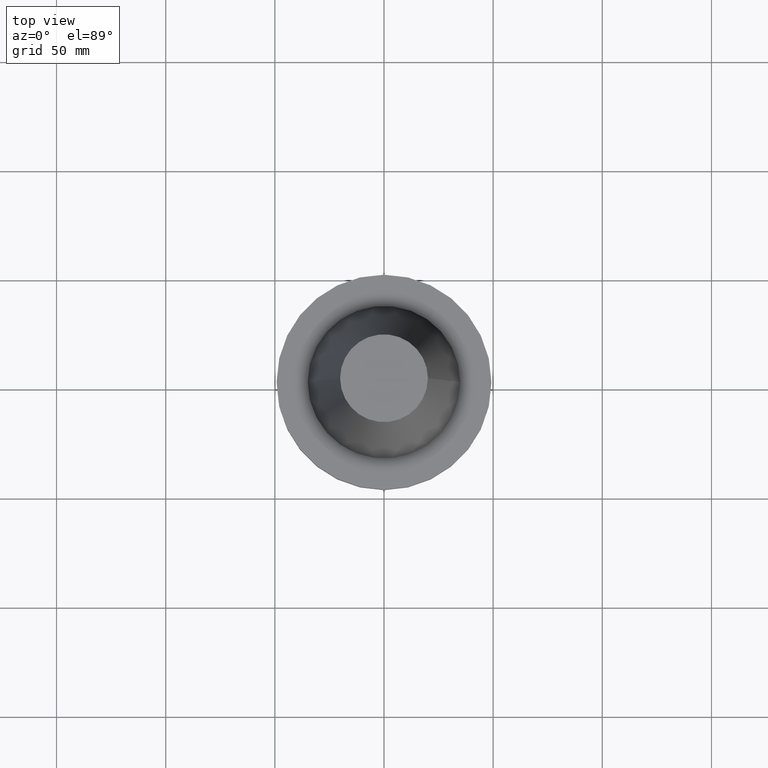
[diagram: clean part render]
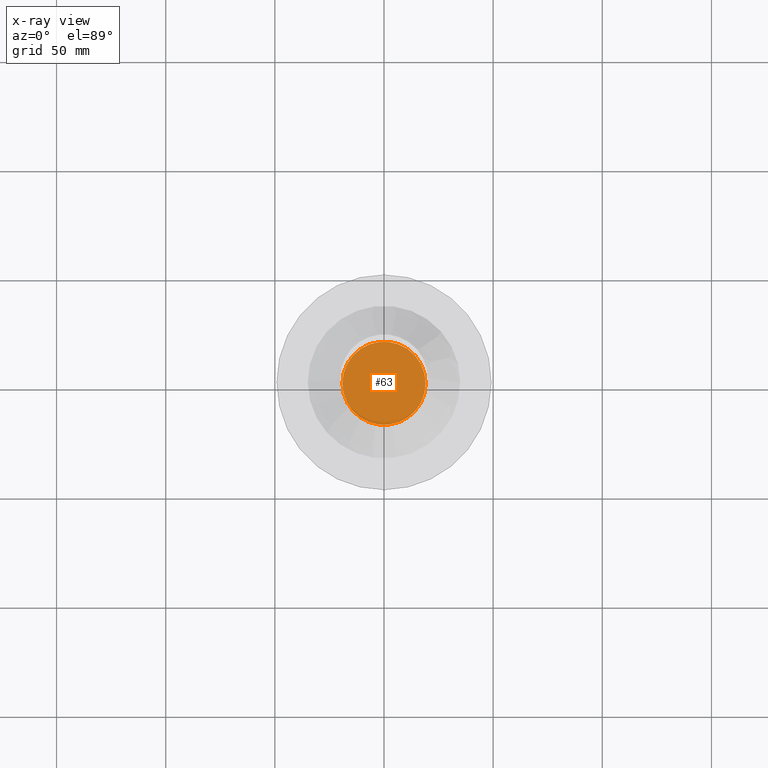
[diagram: x-ray — body ghosted, one internal face saturated and labeled with its STEP entity id]
A machine part, top view, then the same camera in x-ray: the body is ghosted and one INTERNAL B-rep face — a face not visible from any outside direction — is saturated and labeled: STEP entity #63.
In plain terms, the highlighted planar face has unit normal (0, -0, 1).
Its self-contained STEP definition (entity closure, byte-faithful):
#44 = VERTEX_POINT ( 'NONE', #639 ) ;
#63 = ADVANCED_FACE ( 'NONE', ( #433 ), #261, .F. ) ;
#65 = CIRCLE ( 'NONE', #509, 19.04999999999999716 ) ;
#77 = DIRECTION ( 'NONE',  ( 1.000000000000000000, 0.000000000000000000, 0.000000000000000000 ) ) ;
#116 = CARTESIAN_POINT ( 'NONE',  ( 0.000000000000000000, 0.000000000000000000, -35.04999999999999716 ) ) ;
#139 = CARTESIAN_POINT ( 'NONE',  ( 0.000000000000000000, 0.000000000000000000, -35.04999999999999716 ) ) ;
#256 = DIRECTION ( 'NONE',  ( 0.000000000000000000, -0.000000000000000000, 1.000000000000000000 ) ) ;
#261 = PLANE ( 'NONE',  #623 ) ;
#293 = EDGE_CURVE ( 'NONE', #44, #739, #65, .T. ) ;
#299 = ORIENTED_EDGE ( 'NONE', *, *, #293, .F. ) ;
#317 = CARTESIAN_POINT ( 'NONE',  ( 0.000000000000000000, 34.92499999999999716, -35.04999999999999716 ) ) ;
#409 = ORIENTED_EDGE ( 'NONE', *, *, #496, .F. ) ;
#433 = FACE_OUTER_BOUND ( 'NONE', #575, .T. ) ;
#447 = DIRECTION ( 'NONE',  ( -0.000000000000000000, -0.000000000000000000, 1.000000000000000000 ) ) ;
#496 = EDGE_CURVE ( 'NONE', #739, #44, #773, .T. ) ;
#509 = AXIS2_PLACEMENT_3D ( 'NONE', #116, #718, #661 ) ;
#575 = EDGE_LOOP ( 'NONE', ( #409, #299 ) ) ;
#623 = AXIS2_PLACEMENT_3D ( 'NONE', #317, #256, #77 ) ;
#627 = DIRECTION ( 'NONE',  ( 1.000000000000000000, 0.000000000000000000, 0.000000000000000000 ) ) ;
#639 = CARTESIAN_POINT ( 'NONE',  ( -19.04999999999999716, 2.332952152375707254E-15, -35.04999999999999716 ) ) ;
#661 = DIRECTION ( 'NONE',  ( 1.000000000000000000, 0.000000000000000000, 0.000000000000000000 ) ) ;
#673 = AXIS2_PLACEMENT_3D ( 'NONE', #139, #447, #627 ) ;
#718 = DIRECTION ( 'NONE',  ( -0.000000000000000000, -0.000000000000000000, 1.000000000000000000 ) ) ;
#727 = CARTESIAN_POINT ( 'NONE',  ( 19.04999999999999716, 0.000000000000000000, -35.04999999999999716 ) ) ;
#739 = VERTEX_POINT ( 'NONE', #727 ) ;
#773 = CIRCLE ( 'NONE', #673, 19.04999999999999716 ) ;